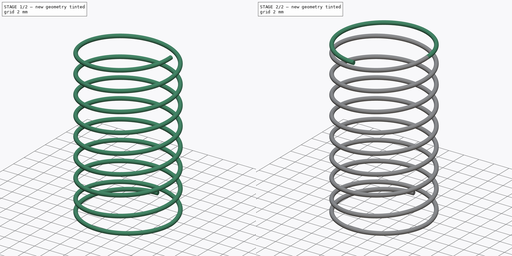
[diagram: build sequence overview — one tinted view per stage of 2, left to right]
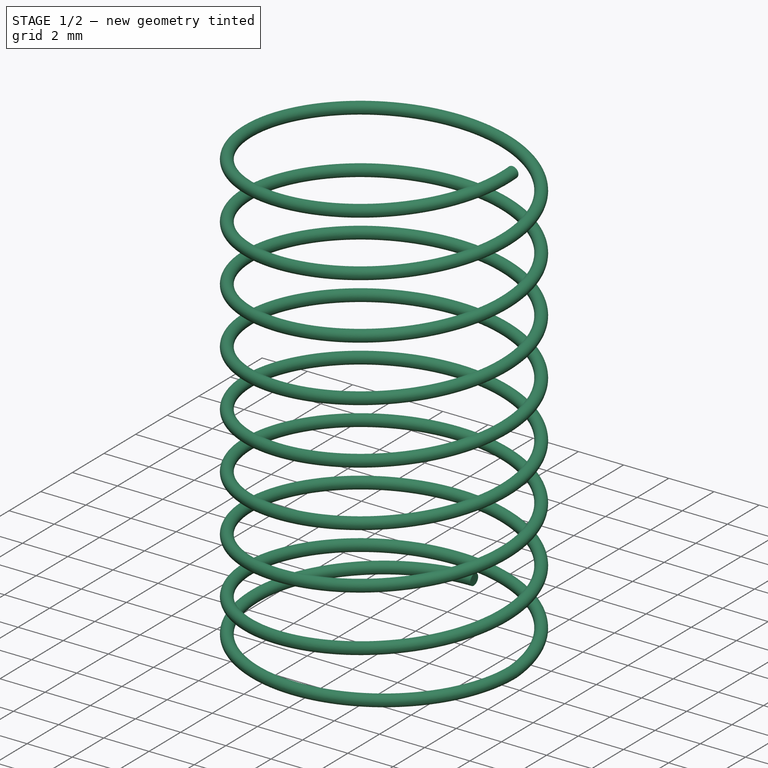
[diagram: stage 1 of 2 — iso view after this stage's code; geometry added in this stage tinted green]
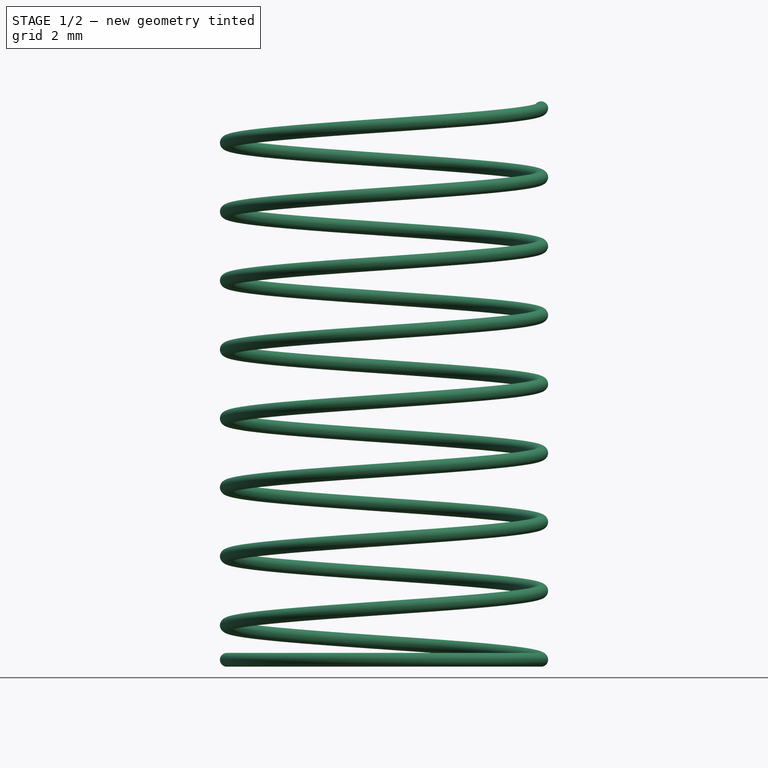
[diagram: stage 1 of 2 — front view after this stage's code; geometry added in this stage tinted green]
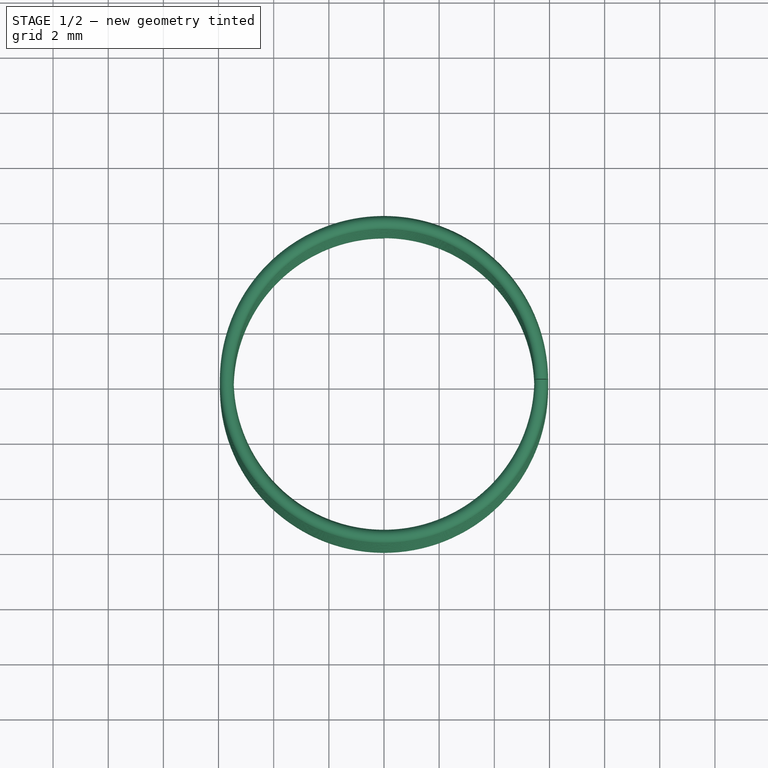
[diagram: stage 1 of 2 — top view after this stage's code; geometry added in this stage tinted green]
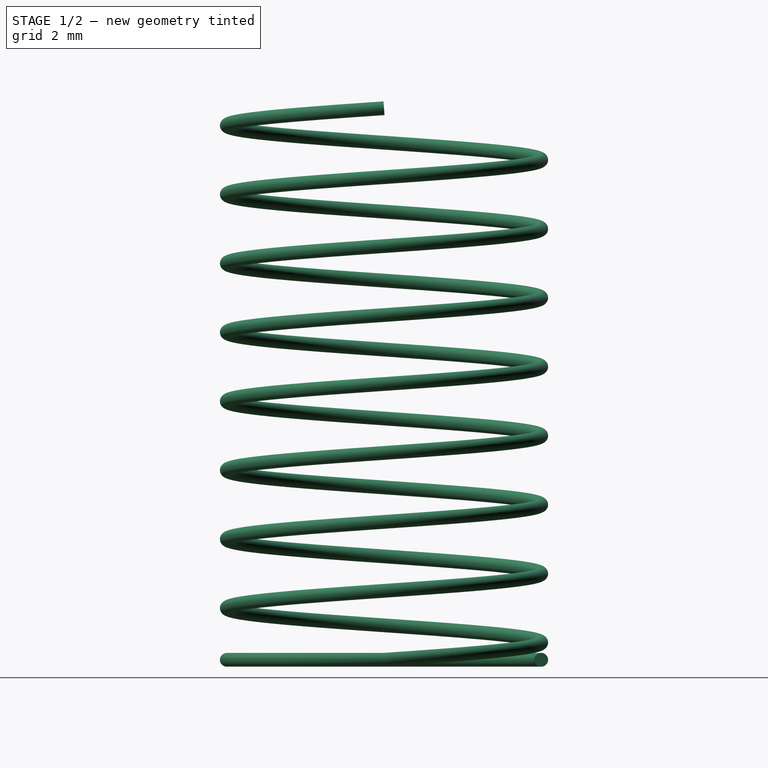
[diagram: stage 1 of 2 — right view after this stage's code; geometry added in this stage tinted green]
FCSTD DOCUMENT  (FreeCAD 0.20R)
Label: Muelle
License: All rights reserved
LicenseURL: http://en.wikipedia.org/wiki/All_rights_reserved
objects: Sketcher::SketchObject×3, PartDesign::AdditivePipe×3, PartDesign::Plane×2, PartDesign::ShapeBinder×1, PartDesign::Point×1, PartDesign::Body×1
note: 14 computed .brp shape members not serialized (recipe doc carries the construction recipe); baked Part::Feature solids carry a one-line shape summary decoded from their .brp

FEATURE [PartDesign::ShapeBinder] CopyHelix
  TraceSupport = false
FEATURE [PartDesign::Plane] DatumPlane
  Length = 60.3306
  MapMode = 7
  Placement = pos=(5.7,-4e-15,0) rot=(1,0,0;1.64049rad)
  ResizeMode = 0
  Support = -> [CopyHelix]
  Width = 63.691
FEATURE [Sketcher::SketchObject] Sketch
  FullyConstrained = true
  MapMode = 5
  Placement = pos=(5.7,-4e-15,0) rot=(1,0,0;1.64049rad)
  Support = -> [DatumPlane]
  sketch-geometry (1):
    g0: Circle CenterX=0 CenterY=0 CenterZ=0 NormalX=0 NormalY=0 NormalZ=1 AngleXU=0 Radius=0.25
  constraints (2):
    c: Coincident(g0,g-1)
    c: Diameter(g0) = 0.5
FEATURE [PartDesign::AdditivePipe] AdditivePipe
  AuxilleryCurvelinear = true
  AuxillerySpineTangent = false
  Binormal = (0,0,0)
  Mode = 0
  Placement = pos=(5.7,-4e-15,0) rot=(1,0,0;1.64049rad)
  Profile = -> Sketch
  Spine = -> CopyHelix [Edge1]
  SpineTangent = false
  Transformation = 0
  Transition = 0
FEATURE [Sketcher::SketchObject] Sketch001
  ExternalGeometry = -> [AdditivePipe]
  FullyConstrained = true
  MapMode = 5
  Support = -> [XY_Plane]
  sketch-geometry (1):
    g0: ArcOfCircle CenterX=3e-16 CenterY=0 CenterZ=0 NormalX=0 NormalY=0 NormalZ=1 AngleXU=0 Radius=5.7 StartAngle=1.5708 EndAngle=6.28319
  constraints (3):
    c: Coincident(g0,g-3)
    c: Coincident(g0,g-1)
    c: Vertical(g0,g0)
FEATURE [PartDesign::AdditivePipe] AdditivePipe001
  AuxilleryCurvelinear = true
  AuxillerySpineTangent = false
  BaseFeature = -> AdditivePipe
  Binormal = (0,0,0)
  Mode = 0
  Placement = pos=(5.7,-4e-15,0) rot=(1,0,0;1.64049rad)
  Profile = -> Sketch
  Spine = -> Sketch001 [Edge1]
  SpineTangent = false
  Transformation = 0
  Transition = 0
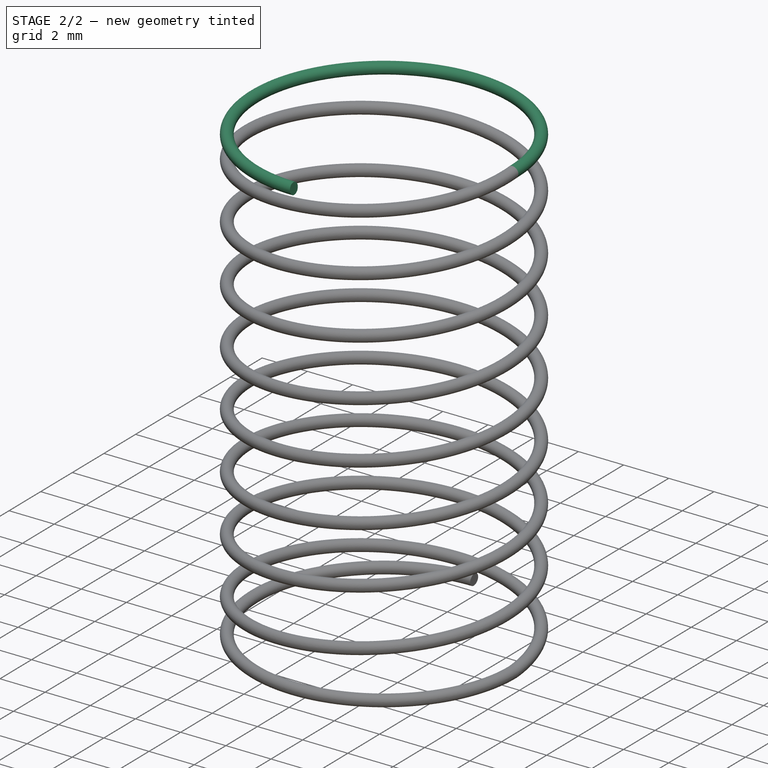
[diagram: stage 2 of 2 — iso view after this stage's code; geometry added in this stage tinted green]
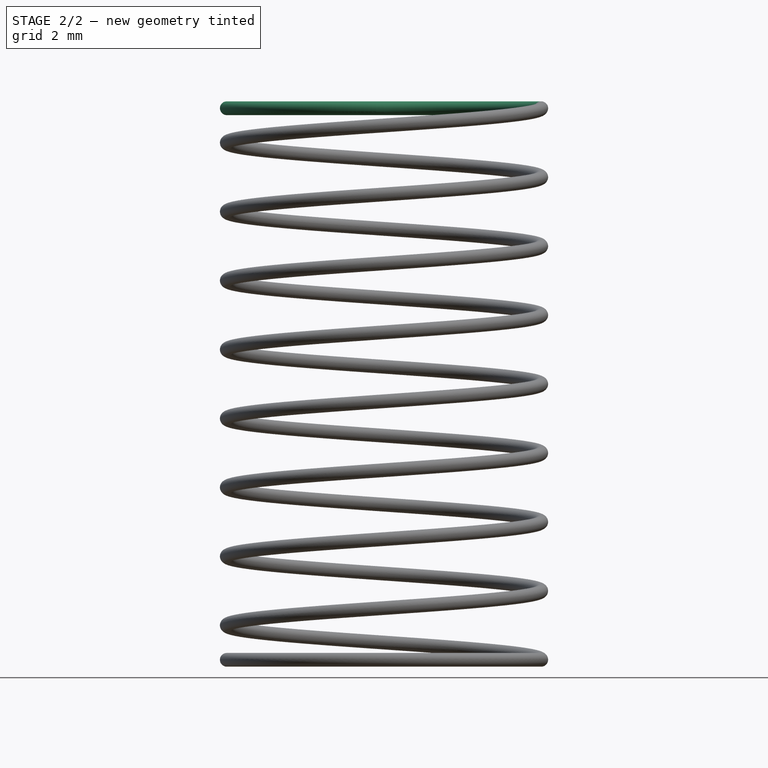
[diagram: stage 2 of 2 — front view after this stage's code; geometry added in this stage tinted green]
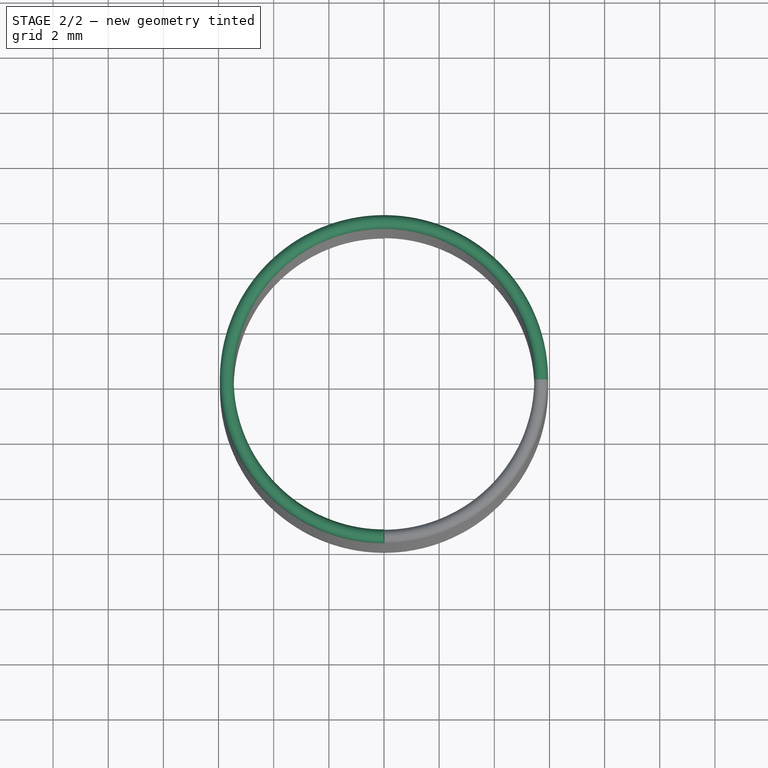
[diagram: stage 2 of 2 — top view after this stage's code; geometry added in this stage tinted green]
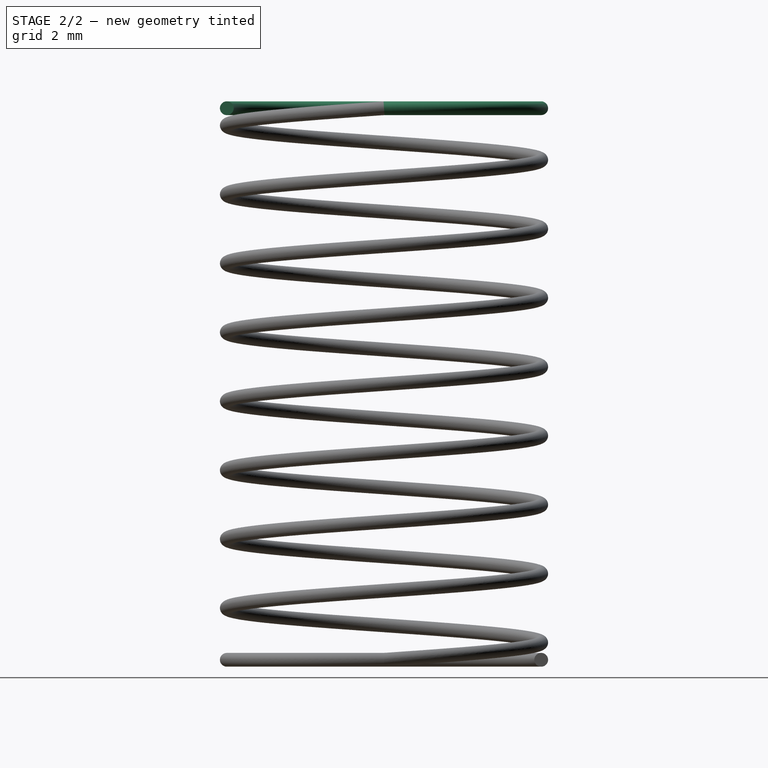
[diagram: stage 2 of 2 — right view after this stage's code; geometry added in this stage tinted green]
FEATURE [PartDesign::Point] DatumPoint
  AttacherType = Attacher::AttachEnginePoint
  MapMode = 36
  Placement = pos=(5.7,-1.68e-14,20) rot=(-0.350174,-0.032633,0.936116;3.11718rad)
  Support = -> [AdditivePipe001]
FEATURE [PartDesign::Plane] DatumPlane001
  Length = 60
  MapMode = 6
  Placement = pos=(5.7,-1.68e-14,20) rot=(0,0,1;3.14159rad)
  ResizeMode = 0
  Support = -> [DatumPoint,XY_Plane]
  Width = 60
FEATURE [Sketcher::SketchObject] Sketch002
  ExternalGeometry = -> [AdditivePipe001,Sketch001]
  FullyConstrained = true
  MapMode = 5
  Placement = pos=(5.7,-1.68e-14,20) rot=(0,0,1;3.14159rad)
  Support = -> [DatumPlane001]
  sketch-geometry (1):
    g0: ArcOfCircle CenterX=5.7 CenterY=-1.68e-14 CenterZ=0 NormalX=0 NormalY=0 NormalZ=1 AngleXU=0 Radius=5.7 StartAngle=3.14159 EndAngle=7.85398
  constraints (3):
    c: Coincident(g0,g-1)
    c: Coincident(g0,g-4)
    c: Vertical(g0,g0)
FEATURE [PartDesign::AdditivePipe] AdditivePipe002
  AuxilleryCurvelinear = true
  AuxillerySpineTangent = false
  BaseFeature = -> AdditivePipe001
  Binormal = (0,0,0)
  Mode = 0
  Placement = pos=(5.7,-4e-15,0) rot=(1,0,0;1.64049rad)
  Profile = -> AdditivePipe001 [Face3]
  Spine = -> Sketch002
  SpineTangent = false
  Transformation = 0
  Transition = 0
FEATURE [PartDesign::Body] Body
  Group = -> [DatumPlane,CopyHelix,Sketch,AdditivePipe,Sketch001,AdditivePipe001,DatumPoint,DatumPlane001,Sketch002,AdditivePipe002]
  Origin = -> Origin
  Tip = -> AdditivePipe002
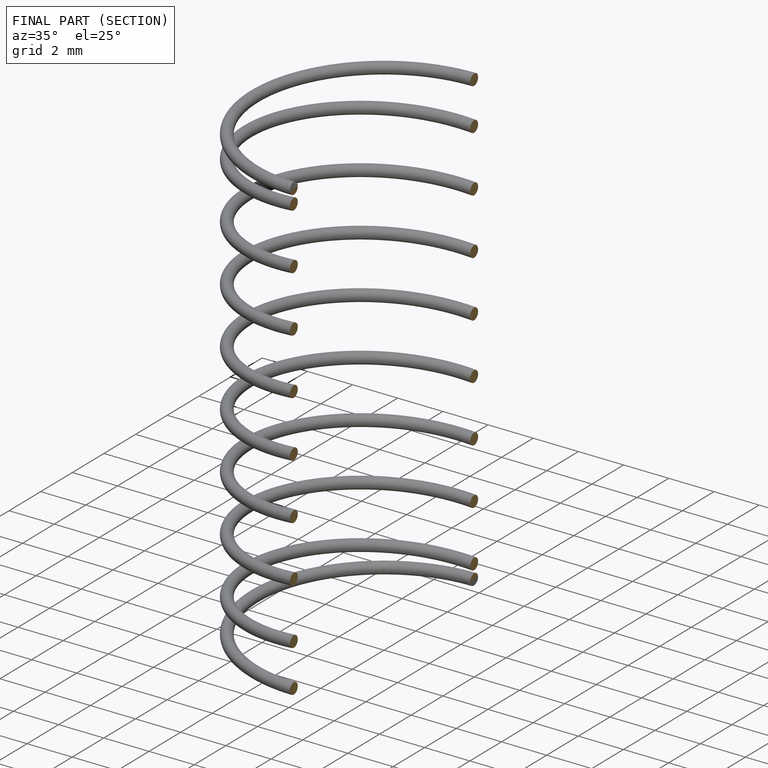
[diagram: finished part — half-section view (interior)]
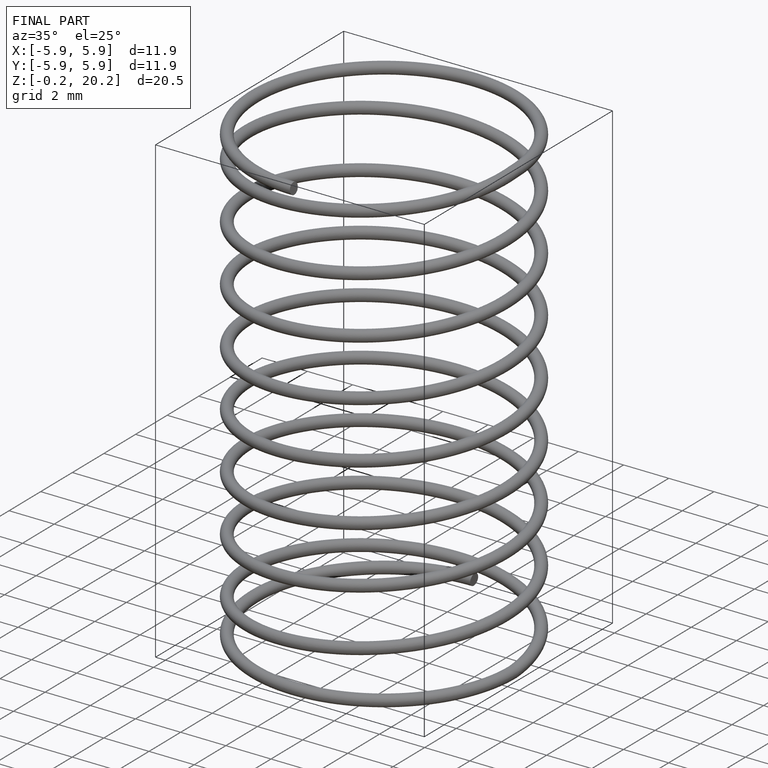
[diagram: finished part — iso view with bounding-box wireframe]
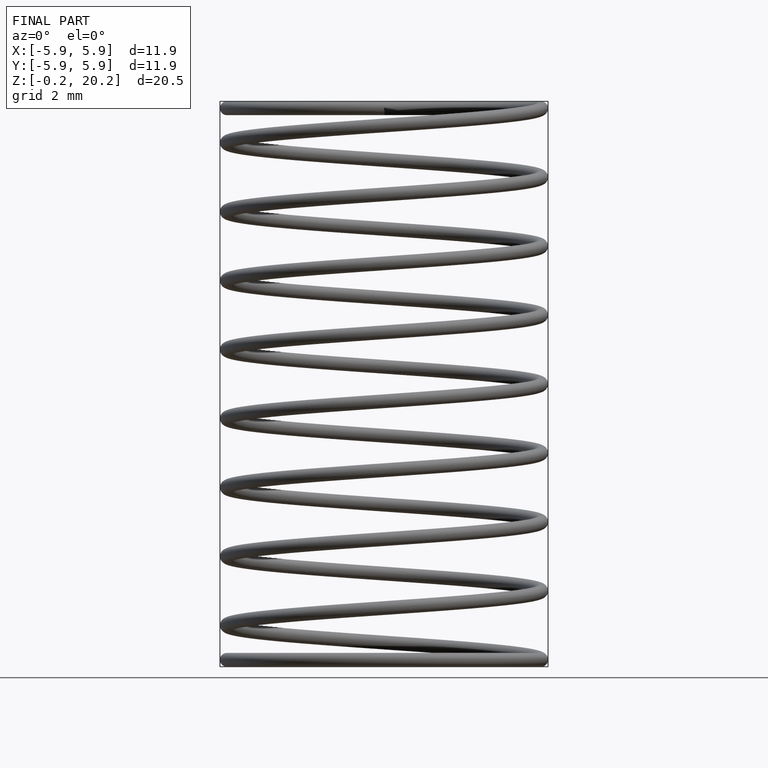
[diagram: finished part — front view with bounding-box wireframe]
